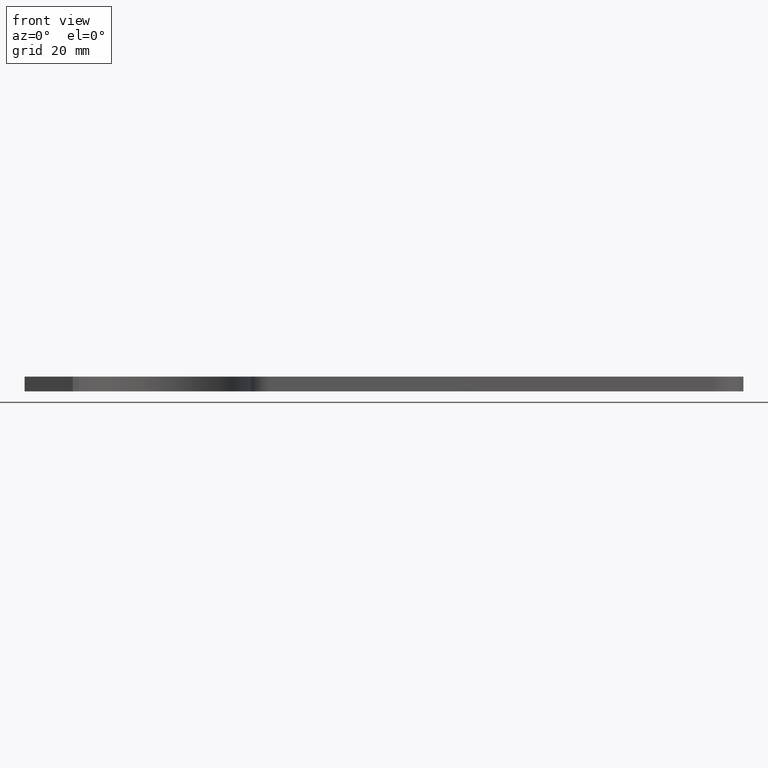
[diagram: clean part render]
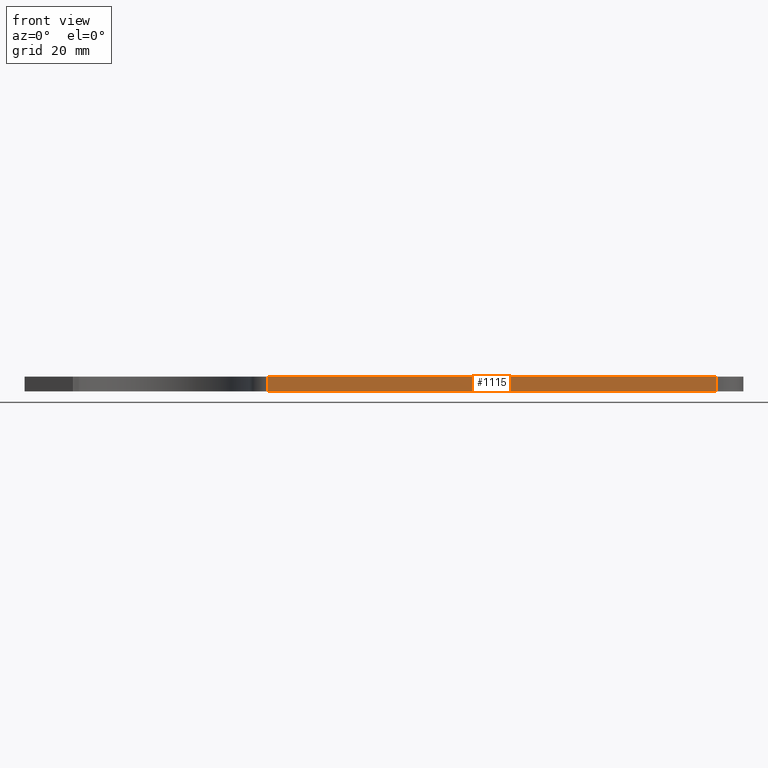
[diagram: same view with one face highlighted and labeled with its STEP entity id]
A machine part, front view. The second image highlights one B-rep face of the part: STEP entity #1115.
In plain terms, the highlighted planar face has unit normal (-0, 1, 0).
Its self-contained STEP definition (entity closure, byte-faithful):
#1115 = ADVANCED_FACE ( 'NONE', ( #7820 ), #11444, .F. ) ;
#1320 = EDGE_LOOP ( 'NONE', ( #11930, #10425, #10489, #3389 ) ) ;
#1621 = LINE ( 'NONE', #6040, #12612 ) ;
#1772 = DIRECTION ( 'NONE',  ( 1.000000000000000000, 4.539560806042690900E-015, 0.0000000000000000000 ) ) ;
#1873 = CARTESIAN_POINT ( 'NONE',  ( 65.92132421961754600, -8.847789162694555300, 0.0000000000000000000 ) ) ;
#1936 = AXIS2_PLACEMENT_3D ( 'NONE', #7429, #12617, #5325 ) ;
#2043 = VECTOR ( 'NONE', #8042, 1000.000000000000000 ) ;
#2863 = VERTEX_POINT ( 'NONE', #5562 ) ;
#2974 = DIRECTION ( 'NONE',  ( -0.0000000000000000000, -0.0000000000000000000, -1.000000000000000000 ) ) ;
#3389 = ORIENTED_EDGE ( 'NONE', *, *, #12162, .T. ) ;
#3972 = CARTESIAN_POINT ( 'NONE',  ( 65.92132421961754600, -8.847789162694555300, 0.0000000000000000000 ) ) ;
#3993 = VERTEX_POINT ( 'NONE', #6787 ) ;
#4483 = EDGE_CURVE ( 'NONE', #8130, #3993, #12717, .T. ) ;
#5325 = DIRECTION ( 'NONE',  ( -1.000000000000000000, -4.539560806042690900E-015, 0.0000000000000000000 ) ) ;
#5562 = CARTESIAN_POINT ( 'NONE',  ( 187.8222773030065300, -8.847789162694002800, 4.000000000000000000 ) ) ;
#6040 = CARTESIAN_POINT ( 'NONE',  ( 65.92132421961754600, -8.847789162694555300, 4.000000000000000000 ) ) ;
#6728 = CARTESIAN_POINT ( 'NONE',  ( 65.92132421961754600, -8.847789162694555300, 4.000000000000000000 ) ) ;
#6787 = CARTESIAN_POINT ( 'NONE',  ( 187.8222773030065300, -8.847789162694002800, 0.0000000000000000000 ) ) ;
#7070 = CARTESIAN_POINT ( 'NONE',  ( 187.8222773030065300, -8.847789162694002800, 4.000000000000000000 ) ) ;
#7429 = CARTESIAN_POINT ( 'NONE',  ( 65.92132421961754600, -8.847789162694555300, 4.000000000000000000 ) ) ;
#7820 = FACE_OUTER_BOUND ( 'NONE', #1320, .T. ) ;
#7841 = LINE ( 'NONE', #7070, #11240 ) ;
#8042 = DIRECTION ( 'NONE',  ( 1.000000000000000000, 4.539560806042690900E-015, 0.0000000000000000000 ) ) ;
#8130 = VERTEX_POINT ( 'NONE', #1873 ) ;
#8217 = DIRECTION ( 'NONE',  ( -0.0000000000000000000, -0.0000000000000000000, -1.000000000000000000 ) ) ;
#8412 = VERTEX_POINT ( 'NONE', #10514 ) ;
#8663 = LINE ( 'NONE', #6728, #10092 ) ;
#10092 = VECTOR ( 'NONE', #1772, 1000.000000000000000 ) ;
#10425 = ORIENTED_EDGE ( 'NONE', *, *, #11777, .F. ) ;
#10489 = ORIENTED_EDGE ( 'NONE', *, *, #11073, .F. ) ;
#10514 = CARTESIAN_POINT ( 'NONE',  ( 65.92132421961754600, -8.847789162694555300, 4.000000000000000000 ) ) ;
#11073 = EDGE_CURVE ( 'NONE', #8412, #2863, #8663, .T. ) ;
#11240 = VECTOR ( 'NONE', #8217, 1000.000000000000000 ) ;
#11444 = PLANE ( 'NONE',  #1936 ) ;
#11777 = EDGE_CURVE ( 'NONE', #2863, #3993, #7841, .T. ) ;
#11930 = ORIENTED_EDGE ( 'NONE', *, *, #4483, .T. ) ;
#12162 = EDGE_CURVE ( 'NONE', #8412, #8130, #1621, .T. ) ;
#12612 = VECTOR ( 'NONE', #2974, 1000.000000000000000 ) ;
#12617 = DIRECTION ( 'NONE',  ( -4.539560806042690900E-015, 1.000000000000000000, 0.0000000000000000000 ) ) ;
#12717 = LINE ( 'NONE', #3972, #2043 ) ;